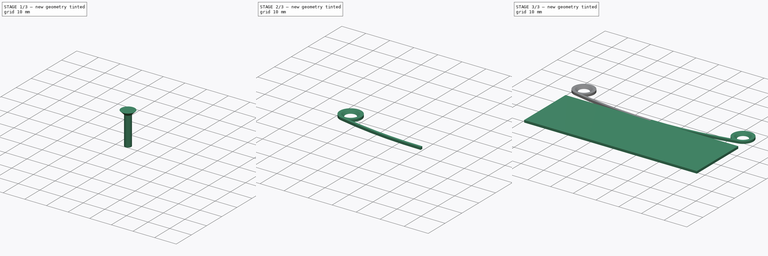
[diagram: build sequence overview — one tinted view per stage of 3, left to right]
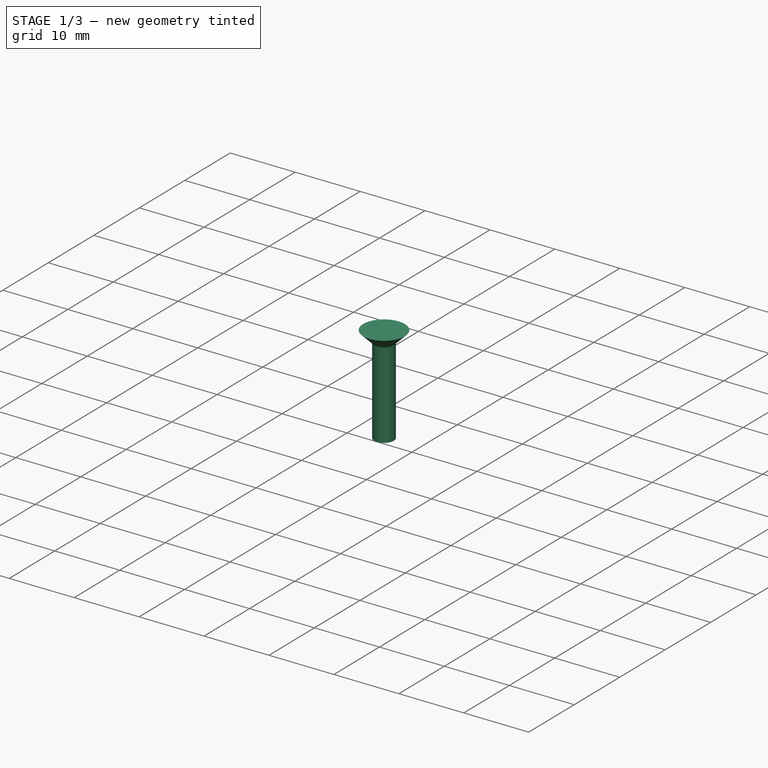
[diagram: stage 1 of 3 — iso view after this stage's code; geometry added in this stage tinted green]
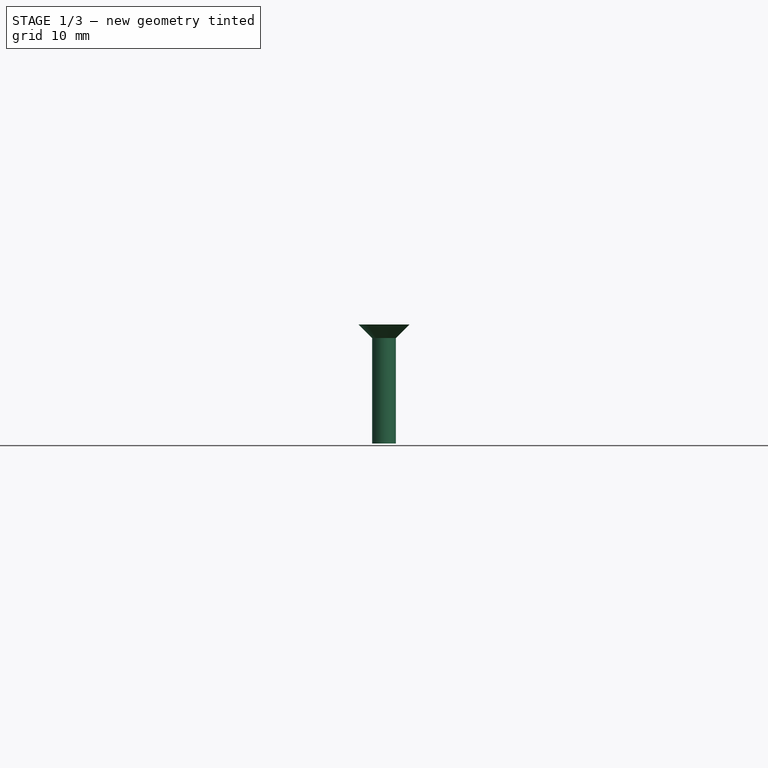
[diagram: stage 1 of 3 — front view after this stage's code; geometry added in this stage tinted green]
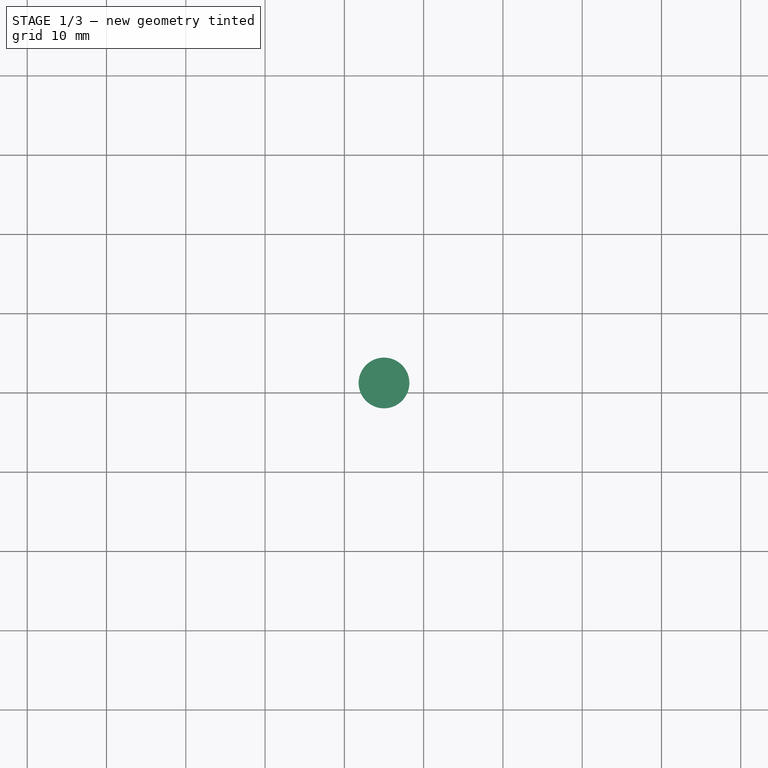
[diagram: stage 1 of 3 — top view after this stage's code; geometry added in this stage tinted green]
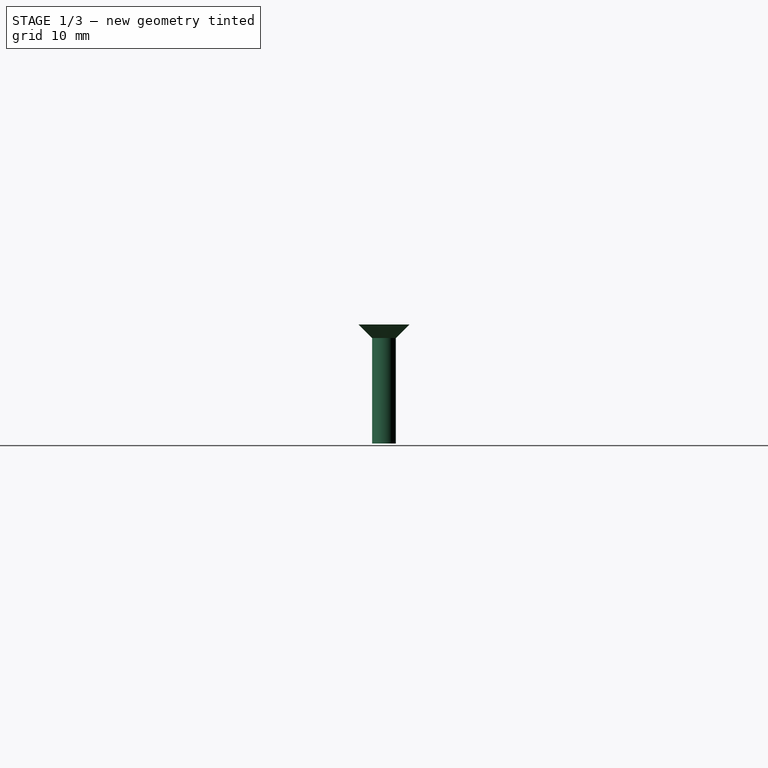
[diagram: stage 1 of 3 — right view after this stage's code; geometry added in this stage tinted green]
FCSTD DOCUMENT  (FreeCAD 0.16RUnknown)
Label: SampleFix
License: All rights reserved
LicenseURL: http://en.wikipedia.org/wiki/All_rights_reserved
objects: Part::Feature×2, Sketcher::SketchObject×2, App::DocumentObjectGroup×2, Part::Box×1, PartDesign::Pad×1, PartDesign::Revolution×1, Part::FeaturePython×1, Part::Cut×1, Part::Mirroring×1, Part::MultiFuse×1
note: 13 computed .brp shape members not serialized (recipe doc carries the construction recipe); baked Part::Feature solids carry a one-line shape summary decoded from their .brp

FEATURE [Sketcher::SketchObject] Sketch007  label="Countersunk"
  Placement = pos=(0,0,0) rot=(0.57735,0.57735,0.57735;2.0944rad)
  sketch-geometry (5):
    g0: LineSegment StartX=3.2 StartY=0 StartZ=0 EndX=1.5 EndY=-1.7 EndZ=0
    g1: LineSegment StartX=1.5 StartY=-1.7 StartZ=0 EndX=1.5 EndY=-15 EndZ=0
    g2: LineSegment StartX=1.5 StartY=-15 StartZ=0 EndX=0 EndY=-15 EndZ=0
    g3: LineSegment StartX=0 StartY=-15 StartZ=0 EndX=0 EndY=0 EndZ=0
    g4: LineSegment StartX=0 StartY=0 StartZ=0 EndX=3.2 EndY=0 EndZ=0
  constraints (14):
    c: Coincident(g0,g1)
    c: Coincident(g1,g2)
    c: Coincident(g2,g3)
    c: Coincident(g3,g4)
    c: Coincident(g4,g0)
    c: Horizontal(g4)
    c: Horizontal(g2)
    c: Vertical(g3)
    c: Vertical(g1)
    c: Angle(g4,g0) = 0.785398
    c: Coincident(g3,g-1)
    c: DistanceY(g0,g-1) = 1.7
    c: DistanceX(g2,g2) = 1.5
    c: DistanceY(g3,g3) = 15
FEATURE [PartDesign::Revolution] Revolution001  label="Countersunk001"
  Angle = 360
  Axis = (0,0,1)
  Base = (0,0,0)
  Placement = pos=(0,0,0) rot=(0.57735,0.57735,0.57735;2.0944rad)
  ReferenceAxis = -> Sketch007 [V_Axis]
  Reversed = true
  Sketch = -> Sketch007
FEATURE [App::DocumentObjectGroup] Group001  label="BoltSrc"
  Group = -> [Revolution001]
FEATURE [Part::FeaturePython] Clone  label="Clone of Countersunk001"  # Draft clone (typed FeaturePython)
  Objects = -> [Revolution001]
  Placement = pos=(35,21,1) rot=(0.57735,0.57735,0.57735;2.0944rad)
  Scale = (1,1,1)
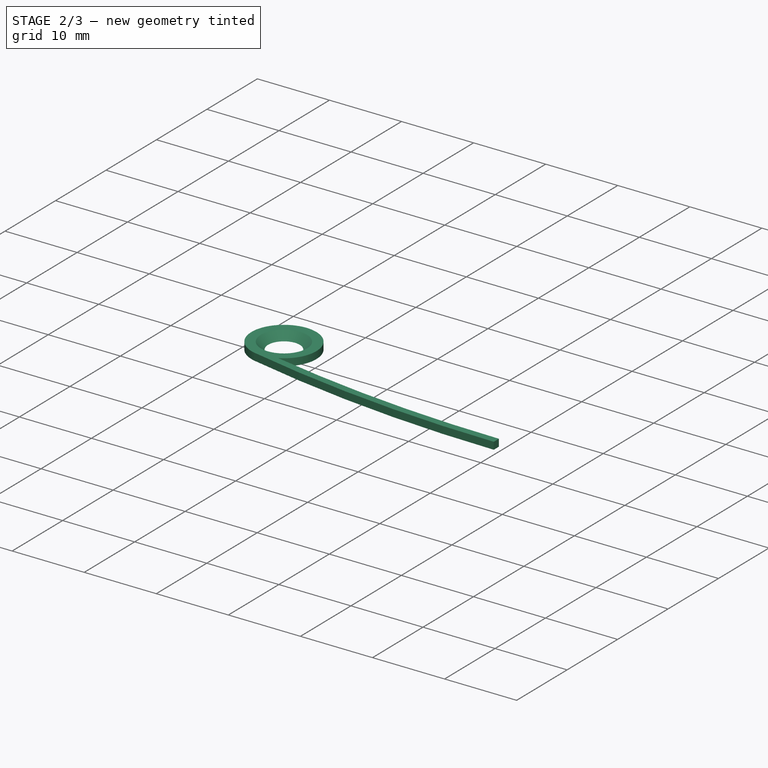
[diagram: stage 2 of 3 — iso view after this stage's code; geometry added in this stage tinted green]
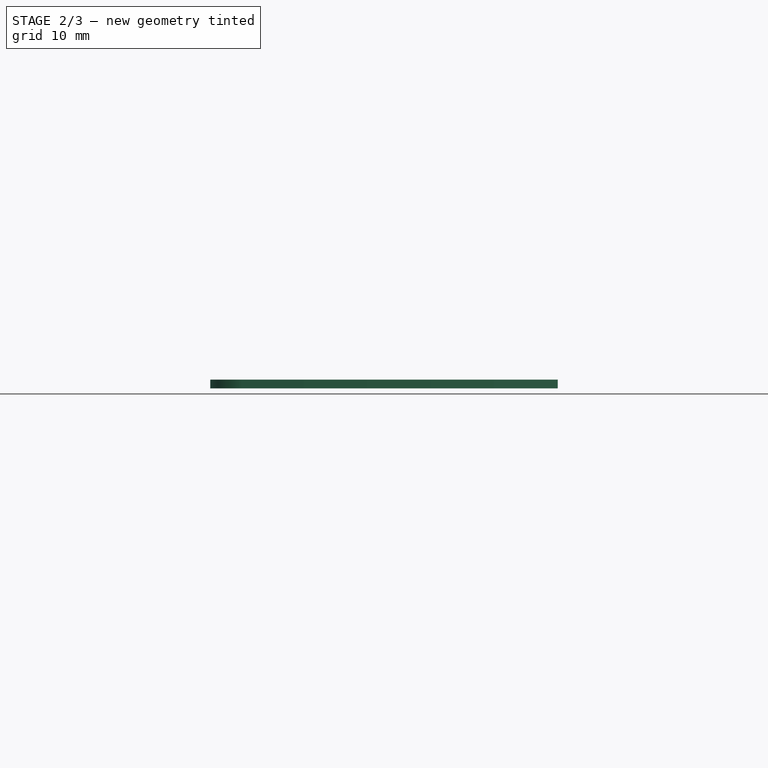
[diagram: stage 2 of 3 — front view after this stage's code; geometry added in this stage tinted green]
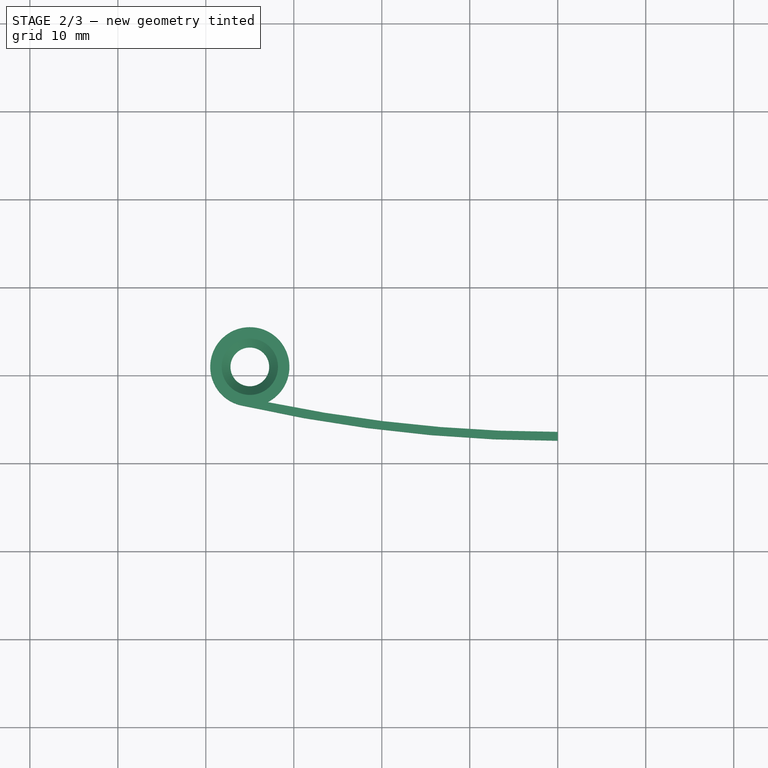
[diagram: stage 2 of 3 — top view after this stage's code; geometry added in this stage tinted green]
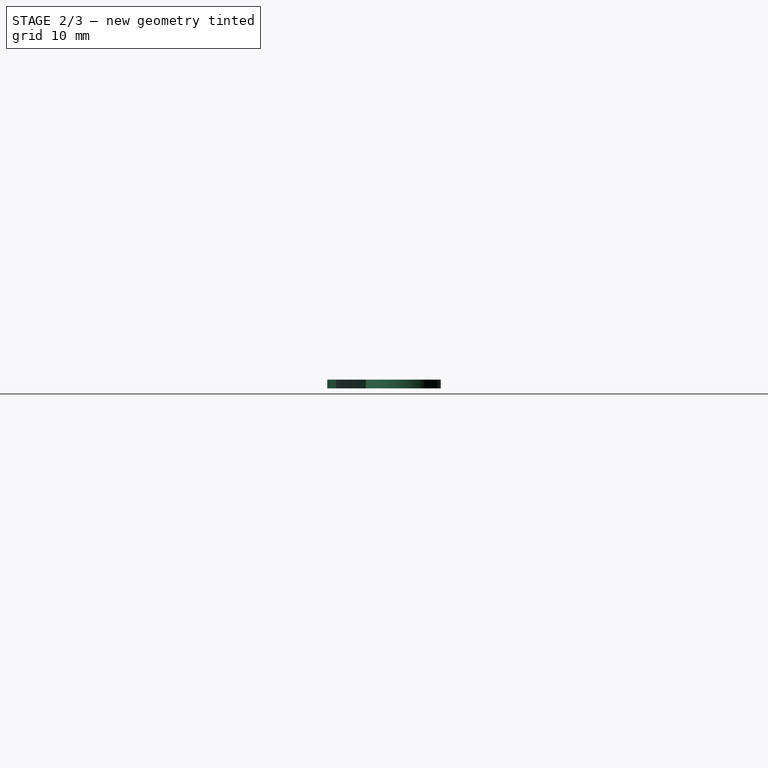
[diagram: stage 2 of 3 — right view after this stage's code; geometry added in this stage tinted green]
FEATURE [App::DocumentObjectGroup] Group  label="Reference"
  Group = -> [Fusion002001,Box001]
FEATURE [PartDesign::Pad] Pad  label="Main001"
  Length = 1
  Length2 = 100
  Sketch = -> Sketch
  Type = 0
FEATURE [Part::Cut] Cut  label="CountersunkCut"
  Base = -> Pad
  Tool = -> Clone
FEATURE [Part::Mirroring] Part__Mirroring  label="CountersunkCut (Mirror #1)"
  Base = (0,0,0)
  Normal = (1,0,0)
  Source = -> Cut
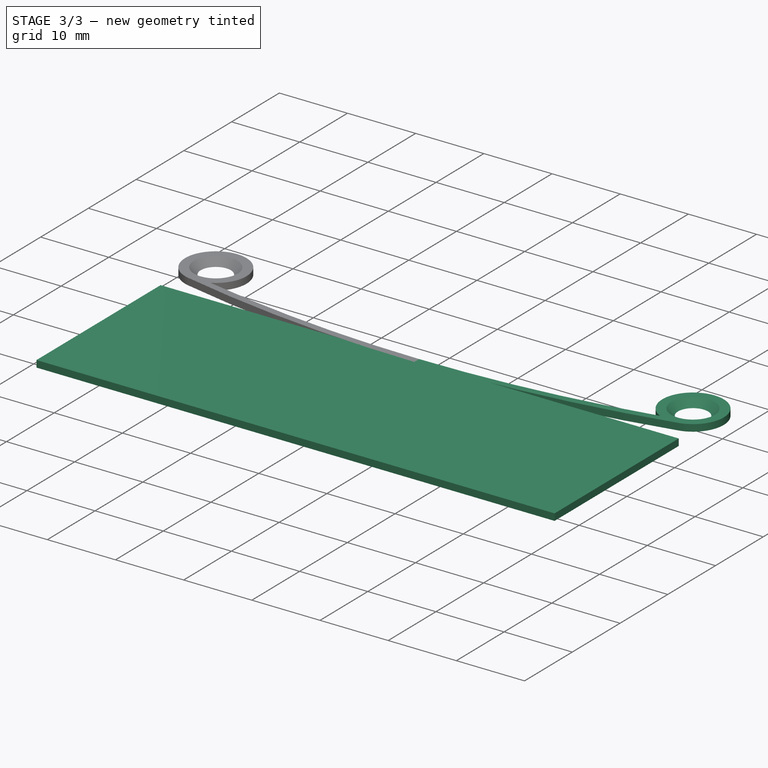
[diagram: stage 3 of 3 — iso view after this stage's code; geometry added in this stage tinted green]
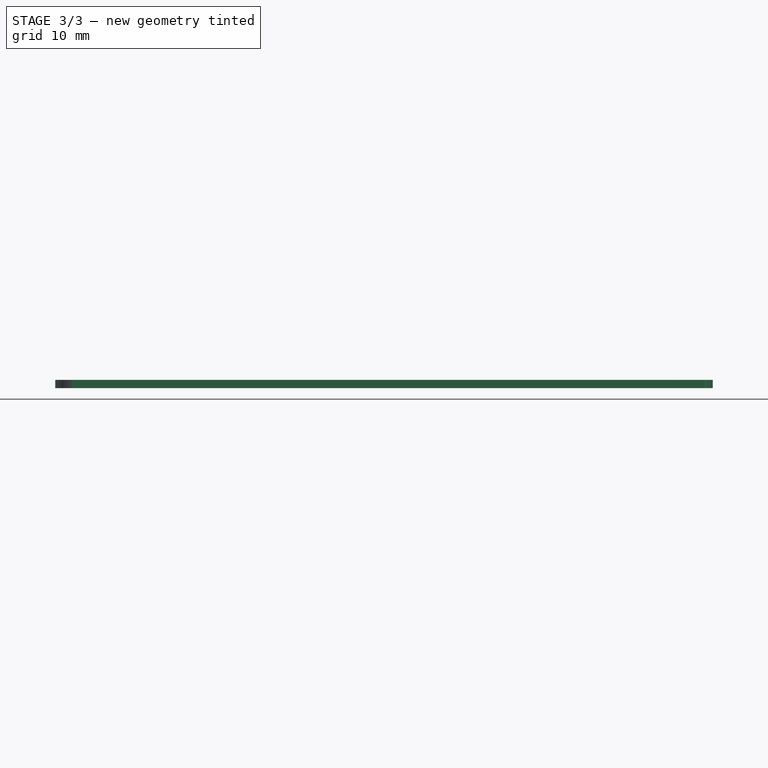
[diagram: stage 3 of 3 — front view after this stage's code; geometry added in this stage tinted green]
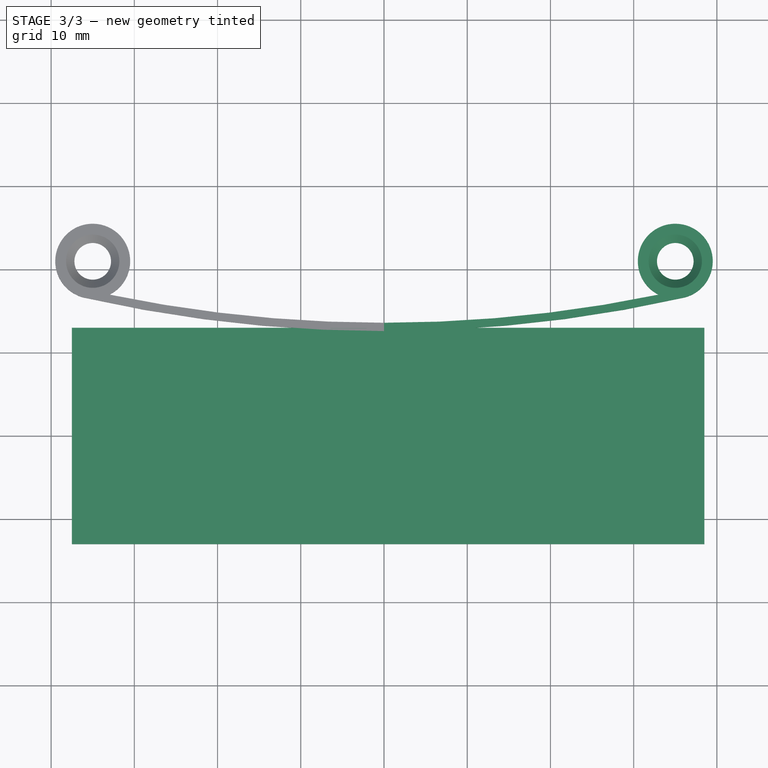
[diagram: stage 3 of 3 — top view after this stage's code; geometry added in this stage tinted green]
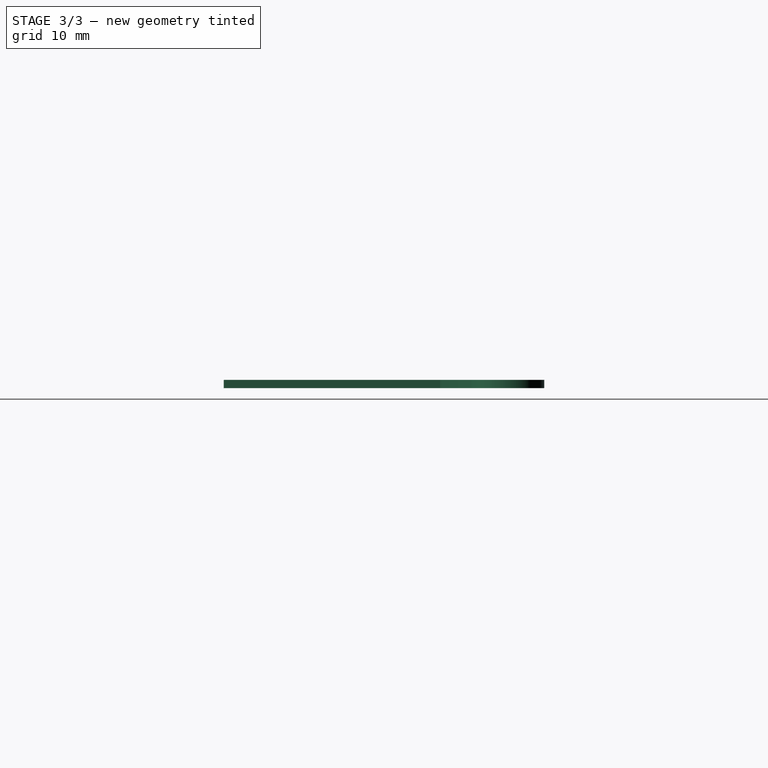
[diagram: stage 3 of 3 — right view after this stage's code; geometry added in this stage tinted green]
FEATURE [Part::Feature] Fusion002001  label="XCarriage"
  shape: bbox 81.03 x 70.18 x 40.02 mm, 182 faces (baked)
FEATURE [Sketcher::SketchObject] Sketch  label="Main"
  sketch-geometry (4):
    g0: ArcOfCircle CenterX=35 CenterY=21 CenterZ=0 NormalX=0 NormalY=0 NormalZ=1 Radius=4.5 StartAngle=4.93433 EndAngle=10.529
    g1: ArcOfCircle CenterX=0 CenterY=176.101 CenterZ=0 NormalX=0 NormalY=0 NormalZ=1 Radius=162.501 StartAngle=4.71239 EndAngle=4.91673
    g2: ArcOfCircle CenterX=0 CenterY=176.101 CenterZ=0 NormalX=0 NormalY=0 NormalZ=1 Radius=163.501 StartAngle=4.71239 EndAngle=4.93433
    g3: LineSegment StartX=0 StartY=13.6 StartZ=0 EndX=0 EndY=12.6 EndZ=0
  constraints (14):
    c: Coincident(g2,g1)
    c: Coincident(g2,g0)
    c: Coincident(g1,g0)
    c: DistanceX(g0) = 35
    c: DistanceY(g0) = 21
    c: Tangent(g2,g0)
    c: PointOnObject(g2,g-2)
    c: Coincident(g3,g1)
    c: Coincident(g3,g2)
    c: Vertical(g3)
    c: Perpendicular(g2,g3)
    c: DistanceY(g3,g3) = 1
    c: Radius(g0) = 4.5
    c: DistanceY(g2) = 12.6
FEATURE [Part::Box] Box001  label="SampleMaster"
  Height = 1
  Length = 26
  Placement = pos=(38.5,-13,0) rot=(0,0,1;1.5708rad)
  Width = 76
FEATURE [Part::MultiFuse] Fusion  label="SideMirror"
  Shapes = -> [Cut,Part__Mirroring]
FEATURE [Part::Feature] Fusion002002  label="SampleFix"
  shape: bbox 79 x 12.9 x 1 mm, 8 faces (baked)
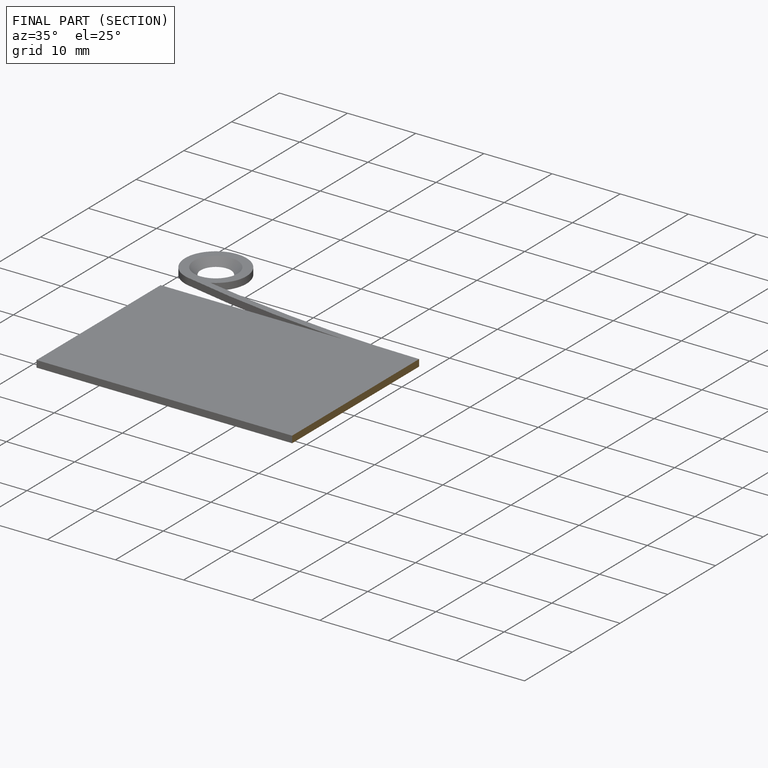
[diagram: finished part — half-section view (interior)]
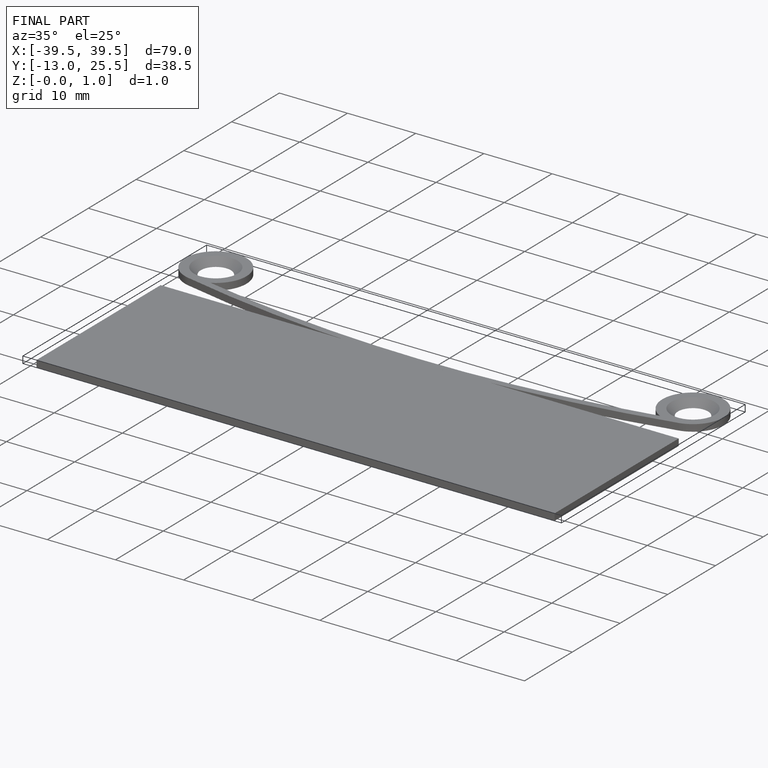
[diagram: finished part — iso view with bounding-box wireframe]
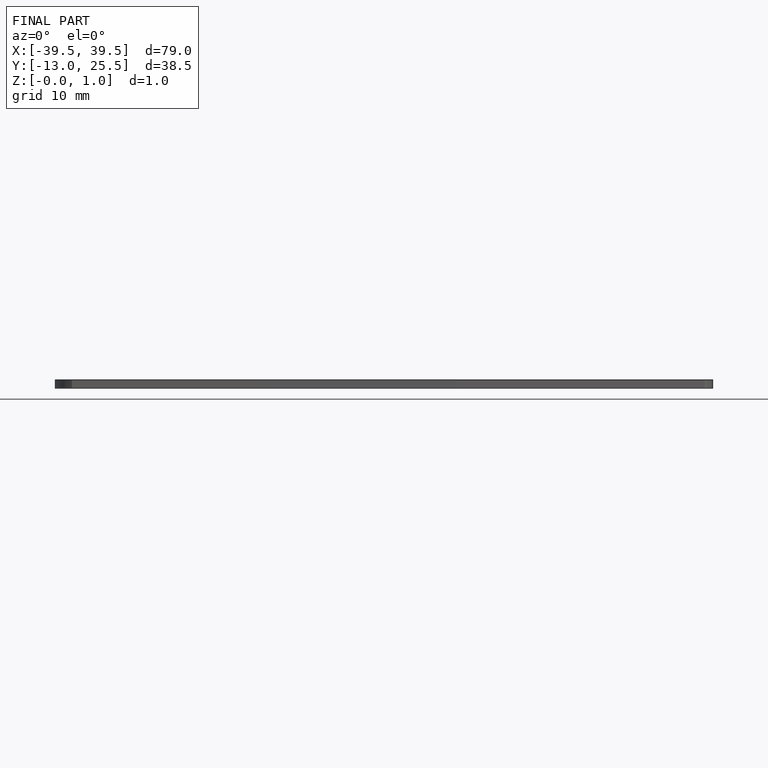
[diagram: finished part — front view with bounding-box wireframe]
